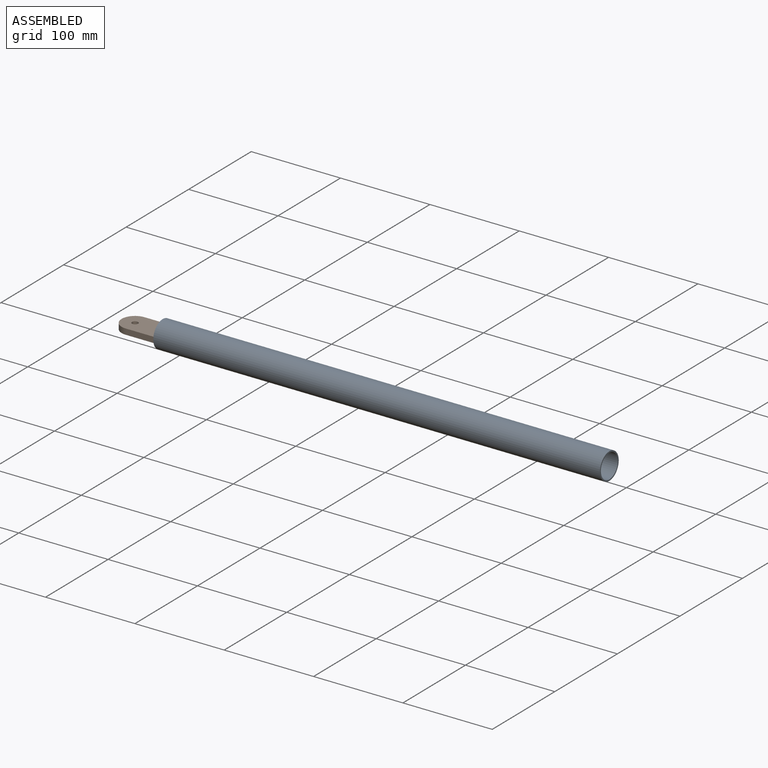
[diagram: assembled view]
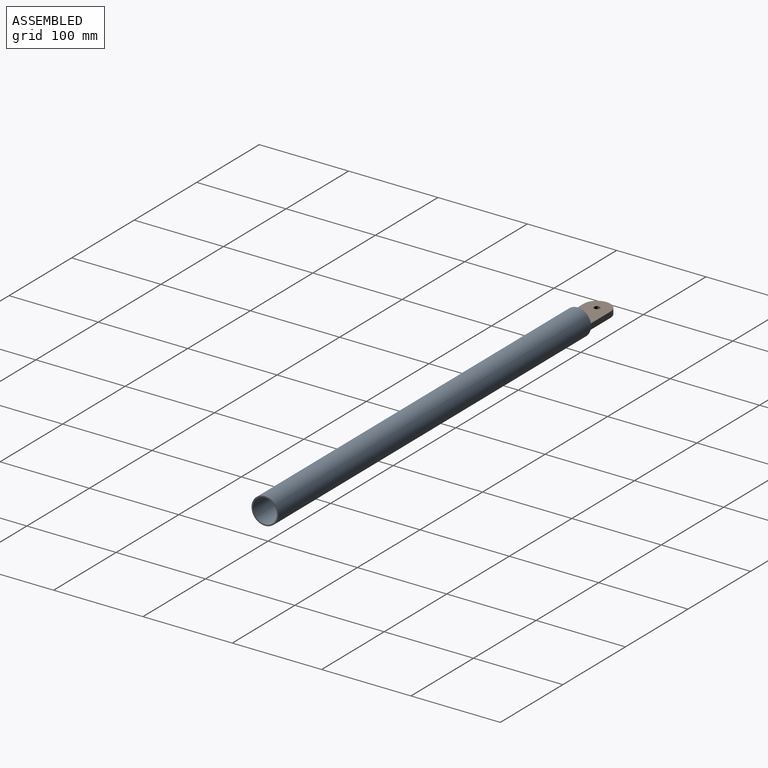
[diagram: assembled view, second angle]
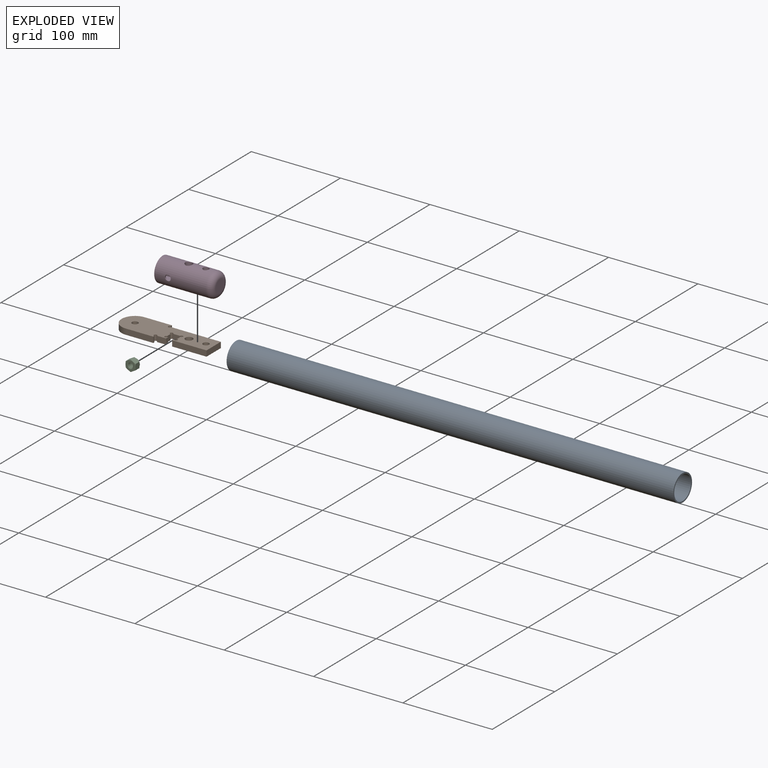
[diagram: exploded view]
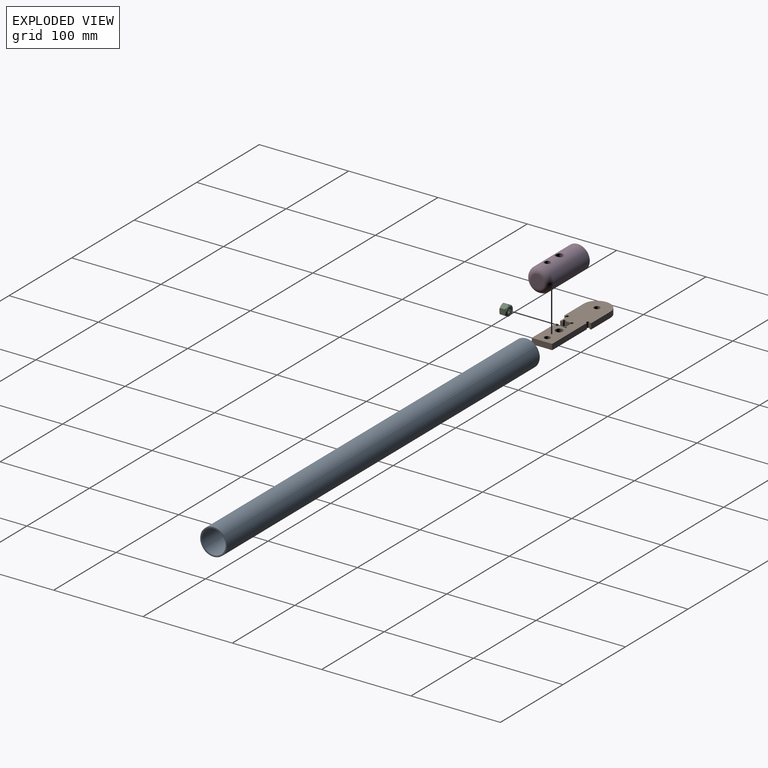
[diagram: exploded view, second angle]
ASSEMBLY  parts=4 mates=6
PART A: 4 faces, bbox 30x30x500 mm
  f0: cylinder r=13.5mm len=500mm, axis (0,0,-1), area 42411.5mm2, adj f2,f3
  f1: cylinder r=15mm len=500mm, axis (0,0,-1), area 47123.9mm2, adj f2,f3
  f2: plane 30x30mm, normal (0,0,1), area 134.3mm2, adj f0,f1
  f3: plane 30x30mm, normal (0,0,-1), area 134.3mm2, adj f0,f1
PART B: 27 faces, bbox 30x103x6.4 mm
  f0: plane 55.44x6.35mm, normal (1,0,0), area 352mm2, adj f1,f24,f25,f26
  f1: cylinder r=1.71mm len=6.35mm, axis (0,0,-1), area 51.3mm2, adj f0,f2,f25,f26
  f2: plane 6.35x1.86mm, normal (0,-1,0), area 11.8mm2, adj f1,f3,f25,f26
  f3: plane 30.89x6.35mm, normal (1,0,0), area 196.1mm2, adj f2,f4,f25,f26
  f4: cylinder r=15mm len=30mm, axis (0,0,-1), area 299.2mm2, adj f3,f5,f25,f26
  f5: plane 30.89x6.35mm, normal (-1,0,0), area 196.1mm2, adj f4,f6,f25,f26
  f6: plane 6.35x1.86mm, normal (0,-1,0), area 11.8mm2, adj f5,f7,f25,f26
  f7: cylinder r=1.71mm len=6.35mm, axis (0,0,-1), area 51.3mm2, adj f6,f8,f25,f26
  f8: plane 10.13x6.35mm, normal (-1,0,0), area 64.4mm2, adj f7,f9,f25,f26
  f9: plane 6.35x3.18mm, normal (0,-1,0), area 20.2mm2, adj f8,f10,f25,f26
  f10: plane 6.35x0.51mm, normal (1,0,0), area 3.3mm2, adj f9,f11,f25,f26
  f11: cylinder r=1.65mm len=6.35mm, axis (0,0,-1), area 49.4mm2, adj f10,f12,f25,f26
  f12: plane 6.35x5.43mm, normal (0,-1,0), area 34.5mm2, adj f11,f13,f25,f26
  f13: cylinder r=1.65mm len=6.35mm, axis (0,0,-1), area 49.4mm2, adj f12,f14,f25,f26
  f14: plane 7.81x6.35mm, normal (-1,0,0), area 49.6mm2, adj f13,f15,f25,f26
  f15: cylinder r=1.65mm len=6.35mm, axis (0,0,-1), area 49.4mm2, adj f14,f16,f25,f26
  f16: plane 6.35x5.43mm, normal (0,1,0), area 34.5mm2, adj f15,f17,f25,f26
  f17: cylinder r=1.65mm len=6.35mm, axis (0,0,-1), area 49.4mm2, adj f16,f18,f25,f26
  f18: plane 6.35x0.51mm, normal (1,0,0), area 3.3mm2, adj f17,f19,f25,f26
  f19: plane 6.35x3.18mm, normal (0,1,0), area 20.2mm2, adj f18,f20,f25,f26
  f20: plane 38.52x6.35mm, normal (-1,0,0), area 244.6mm2, adj f19,f24,f25,f26
  f21: cylinder r=4.13mm len=8.26mm, axis (0,0,-1), area 164.7mm2, adj f25,f26
  f22: cylinder r=3.37mm len=6.73mm, axis (0,0,-1), area 134.3mm2, adj f25,f26
  f23: cylinder r=3.37mm len=6.73mm, axis (0,0,-1), area 134.3mm2, adj f25,f26
  f24: plane 22.86x6.35mm, normal (0,-1,0), area 145.2mm2, adj f0,f20,f25,f26
  f25: plane 103.04x30mm, normal (0,0,1), area 2303.7mm2, adj f0,f1,f2,f3,f4,f5,f6,f7
  f26: plane 103.04x30mm, normal (0,0,-1), area 2303.7mm2, adj f0,f1,f2,f3,f4,f5,f6,f7
PART C: 51 faces, bbox 13.3x8.6x13.3 mm
  f0: torus R=4.23mm, axis (0,-1,0), area 57.5mm2, adj f49,f50
  f1: cylinder r=3.42mm len=6.84mm, axis (0,-1,0), area 3.3mm2, adj f27,f50
  f2: torus R=4.23mm, axis (0,-1,0), area 66.3mm2, adj f3,f27,f38,f39,f40,f41,f42
  f3: cone r=5.56mm half-angle=65deg, axis (0,-1,0), area 2.9mm2, adj f2,f47,f48
  f4: cone r=6.42mm half-angle=65deg, axis (0,1,0), area 2.9mm2, adj f28,f44,f45
  f5: cylinder r=3.17mm len=6mm, axis (0,-1,0), area 1.7mm2, adj f25,f28
  f6: cone r=2.69mm half-angle=60deg, axis (0,-0.98,-0.2), area 12mm2, adj f7,f24
  f7: cylinder r=2.69mm len=5.39mm, axis (0,0.98,0.2), area 5.4mm2, adj f6,f8
  f8: cone r=3.38mm half-angle=60deg, axis (0,0.98,0.2), area 12mm2, adj f7,f23
  f9: cone r=2.69mm half-angle=60deg, axis (0,-0.98,-0.2), area 12mm2, adj f10,f23
  f10: cylinder r=2.69mm len=5.39mm, axis (0,0.98,0.2), area 5.4mm2, adj f9,f11
  f11: cone r=3.38mm half-angle=60deg, axis (0,0.98,0.2), area 12mm2, adj f10,f22
  f12: cone r=2.69mm half-angle=60deg, axis (0,-0.98,-0.2), area 12mm2, adj f13,f22
  f13: cylinder r=2.69mm len=5.39mm, axis (0,0.98,0.2), area 5.4mm2, adj f12,f14
  f14: cone r=3.38mm half-angle=60deg, axis (0,0.98,0.2), area 12mm2, adj f13,f21
  f15: cone r=2.69mm half-angle=60deg, axis (0,-0.98,-0.2), area 12mm2, adj f16,f21
  f16: cylinder r=2.69mm len=5.39mm, axis (0,0.98,0.2), area 5.4mm2, adj f15,f17
  f17: cone r=3.38mm half-angle=60deg, axis (0,0.98,0.2), area 12mm2, adj f16,f20
  f18: cylinder r=2.69mm len=5.39mm, axis (0,0.98,0.2), area 2.8mm2, adj f19,f32,f49
  f19: cone r=3.38mm half-angle=60deg, axis (0,0.98,0.2), area 3.5mm2, adj f18,f31,f49
  f20: cylinder r=3.17mm len=6.35mm, axis (0,-1,0), area 6.3mm2, adj f17,f32,f49
  f21: cylinder r=3.17mm len=6.35mm, axis (0,-1,0), area 6.8mm2, adj f14,f15
  f22: cylinder r=3.17mm len=6.35mm, axis (0,-1,0), area 6.8mm2, adj f11,f12
  f23: cylinder r=3.17mm len=6.35mm, axis (0,-1,0), area 6.8mm2, adj f8,f9
  f24: cylinder r=3.17mm len=6.35mm, axis (0,-1,0), area 6.8mm2, adj f6,f26
  f25: cone r=2.69mm half-angle=60deg, axis (0,-0.98,-0.2), area 3.9mm2, adj f5,f29,f30
  f26: cone r=3.38mm half-angle=60deg, axis (0,0.98,0.2), area 8.8mm2, adj f24,f29,f30
  f27: plane 8.47x8.47mm, normal (0,1,0), area 19.5mm2, adj f1,f2
  f28: plane 11.11x11.11mm, normal (0,-1,0), area 65.3mm2, adj f4,f5,f29,f33,f34,f35,f36,f37
  f29: cone r=3.17mm half-angle=65deg, axis (0,-1,0), area 4.1mm2, adj f25,f26,f28,f30
  f30: cylinder r=2.69mm len=5.39mm, axis (0,0.98,0.2), area 2.7mm2, adj f25,f26,f29
  f31: cylinder r=3.17mm len=5.02mm, axis (0,-1,0), area 0.7mm2, adj f19,f49
  f32: cone r=2.69mm half-angle=60deg, axis (0,-0.98,-0.2), area 8.4mm2, adj f18,f20,f49
  f33: cone r=6.42mm half-angle=65deg, axis (0,1,0), area 2.9mm2, adj f28,f47,f48
  f34: cone r=6.42mm half-angle=65deg, axis (0,1,0), area 2.9mm2, adj f28,f43,f48
  f35: cone r=6.42mm half-angle=65deg, axis (0,1,0), area 2.9mm2, adj f28,f43,f44
  f36: cone r=6.42mm half-angle=65deg, axis (0,1,0), area 2.9mm2, adj f28,f45,f46
  f37: cone r=6.42mm half-angle=65deg, axis (0,1,0), area 2.9mm2, adj f28,f46,f47
  f38: cone r=5.56mm half-angle=65deg, axis (0,-1,0), area 2.9mm2, adj f2,f45,f46
  f39: cone r=5.56mm half-angle=65deg, axis (0,-1,0), area 2.9mm2, adj f2,f46,f47
  f40: cone r=5.56mm half-angle=65deg, axis (0,-1,0), area 2.9mm2, adj f2,f44,f45
  f41: cone r=5.56mm half-angle=65deg, axis (0,-1,0), area 2.9mm2, adj f2,f43,f48
  f42: cone r=5.56mm half-angle=65deg, axis (0,-1,0), area 2.9mm2, adj f2,f43,f44
  f43: plane 7.12x6.92mm, normal (1,0,0), area 40.7mm2, adj f34,f35,f41,f42,f44,f48
  f44: plane 7.12x6.06mm, normal (0.5,0,0.87), area 40.7mm2, adj f4,f35,f40,f42,f43,f45
  f45: plane 7.12x6.06mm, normal (-0.5,0,0.87), area 40.7mm2, adj f4,f36,f38,f40,f44,f46
  f46: plane 7.12x6.92mm, normal (-1,0,0), area 40.7mm2, adj f36,f37,f38,f39,f45,f47
  f47: plane 7.12x6.06mm, normal (-0.5,0,-0.87), area 40.7mm2, adj f3,f33,f37,f39,f46,f48
  f48: plane 7.12x6.06mm, normal (0.5,0,-0.87), area 40.7mm2, adj f3,f33,f34,f41,f43,f47
  f49: plane 10.86x10.86mm, normal (0,1,0), area 63.1mm2, adj f0,f18,f19,f20,f31,f32
  f50: plane 8.47x8.47mm, normal (0,-1,0), area 19.5mm2, adj f0,f1
PART D: 38 faces, bbox 29.2x29.2x64.3 mm
  f0: cylinder r=13.5mm len=57.91mm, axis (0,0,-1), area 4535.6mm2, adj f1,f8,f17,f18,f19,f22,f23,f24
  f1: plane 27x27mm, normal (0,0,1), area 342.9mm2, adj f0,f2,f3,f10,f11,f12,f13,f14
  f2: plane 59.18x25.2mm, normal (1,0,0), area 1111mm2, adj f1,f5,f6,f7,f13,f15,f16,f20
  f3: plane 59.18x25.2mm, normal (-1,0,0), area 1111mm2, adj f1,f5,f6,f7,f9,f10,f11,f18
  f4: plane 14.3x14.3mm, normal (0,0,-1), area 160.6mm2, adj f8
  f5: plane 58.39x6.86mm, normal (0,-1,0), area 400.5mm2, adj f2,f3,f7,f37
  f6: plane 58.39x6.86mm, normal (0,1,0), area 367mm2, adj f2,f3,f7,f17,f36
  f7: plane 23.62x6.86mm, normal (0,0,1), area 162mm2, adj f2,f3,f5,f6
  f8: torus R=7.15mm, axis (0,0,1), area 701.5mm2, adj f0,f4
  f9: plane 9.53x2.98mm, normal (0,0,1), area 28.4mm2, adj f3,f10,f11,f12
  f10: plane 20.8x2.98mm, normal (0,1,0), area 62.1mm2, adj f1,f3,f9,f12
  f11: plane 20.8x2.98mm, normal (0,-1,0), area 62.1mm2, adj f1,f3,f9,f12
  f12: plane 20.8x9.53mm, normal (-1,0,0), area 198.1mm2, adj f1,f9,f10,f11
  f13: plane 20.8x2.98mm, normal (0,-1,0), area 62.1mm2, adj f1,f2,f14,f16
  f14: plane 20.8x9.53mm, normal (1,0,0), area 198.1mm2, adj f1,f13,f15,f16
  f15: plane 20.8x2.98mm, normal (0,1,0), area 62.1mm2, adj f1,f2,f14,f16
  f16: plane 9.53x2.98mm, normal (0,0,1), area 28.4mm2, adj f2,f13,f14,f15
  f17: cylinder r=3.26mm len=6.53mm, axis (0,1,0), area 30.6mm2, adj f0,f6
  f18: cylinder r=3.37mm len=10.07mm, axis (-1,0,0), area 208.5mm2, adj f0,f3
  f19: cylinder r=4.13mm len=10.07mm, axis (-1,0,0), area 252.8mm2, adj f0,f3
  f20: cylinder r=3.37mm len=6.73mm, axis (1,0,0), area 18.8mm2, adj f2,f35
  f21: cylinder r=4.13mm len=8.26mm, axis (1,0,0), area 23.1mm2, adj f2,f28
  f22: plane 8.74x5.95mm, normal (0,-0.87,-0.5), area 55.8mm2, adj f0,f23,f27,f28
  f23: plane 9.18x6.87mm, normal (0,0,-1), area 62.1mm2, adj f0,f22,f24,f28
  f24: plane 8.74x5.95mm, normal (0,0.87,-0.5), area 55.8mm2, adj f0,f23,f25,f28
  f25: plane 8.74x5.95mm, normal (0,0.87,0.5), area 55.8mm2, adj f0,f24,f26,f28
  f26: plane 9.18x6.87mm, normal (0,0,1), area 62.1mm2, adj f0,f25,f27,f28
  f27: plane 8.74x5.95mm, normal (0,-0.87,0.5), area 55.8mm2, adj f0,f22,f26,f28
  f28: plane 13.75x11.91mm, normal (-1,0,0), area 69.2mm2, adj f21,f22,f23,f24,f25,f26,f27
  f29: plane 8.74x5.95mm, normal (0,-0.87,-0.5), area 55.8mm2, adj f0,f30,f34,f35
  f30: plane 9.18x6.87mm, normal (0,0,-1), area 62.1mm2, adj f0,f29,f31,f35
  f31: plane 8.74x5.95mm, normal (0,0.87,-0.5), area 55.8mm2, adj f0,f30,f32,f35
  f32: plane 8.74x5.95mm, normal (0,0.87,0.5), area 55.8mm2, adj f0,f31,f33,f35
  f33: plane 9.18x6.87mm, normal (0,0,1), area 62.1mm2, adj f0,f32,f34,f35
  f34: plane 8.74x5.95mm, normal (0,-0.87,0.5), area 55.8mm2, adj f0,f29,f33,f35
  f35: plane 13.75x11.91mm, normal (-1,0,0), area 87.2mm2, adj f20,f29,f30,f31,f32,f33,f34
  f36: cylinder r=0.79mm len=6.86mm, axis (-1,0,0), area 8.5mm2, adj f1,f2,f3,f6
  f37: cylinder r=0.79mm len=6.86mm, axis (1,0,0), area 8.5mm2, adj f1,f2,f3,f5
PLACE A rot(axis=(-0.58,-0.58,0.58),120deg) t=(488.86,-11.27,-39.41)mm
PLACE B rot(axis=(0,0,1),90deg) t=(-11.14,-11.27,-42.84)mm
PLACE C t=(4.1,-18.73,-39.66)mm
PLACE D rot(axis=(0,-1,0),90deg) t=(53.13,-11.27,-39.41)mm
MATE cylindrical B.f21 <-> D.f19  axis (0,0,-1) through (18.35,-11.27,-36.49)mm
MATE planar C.f0 <-> B.f14  axis (0,1,0) through (4.1,-10.79,-39.66)mm
MATE planar B.f12 <-> C.f46  axis (1,0,0) through (-1.45,-15.16,-39.66)mm
MATE cylindrical A.f1 <-> D.f0  axis (1,0,0) through (-11.14,-11.27,-39.41)mm
MATE planar B.f26 <-> D.f2  axis (0,0,-1) through (-42.02,-26.27,-42.84)mm
MATE planar A.f1 <-> B.f2  axis (-1,0,0) through (-11.14,-11.27,-39.41)mm
